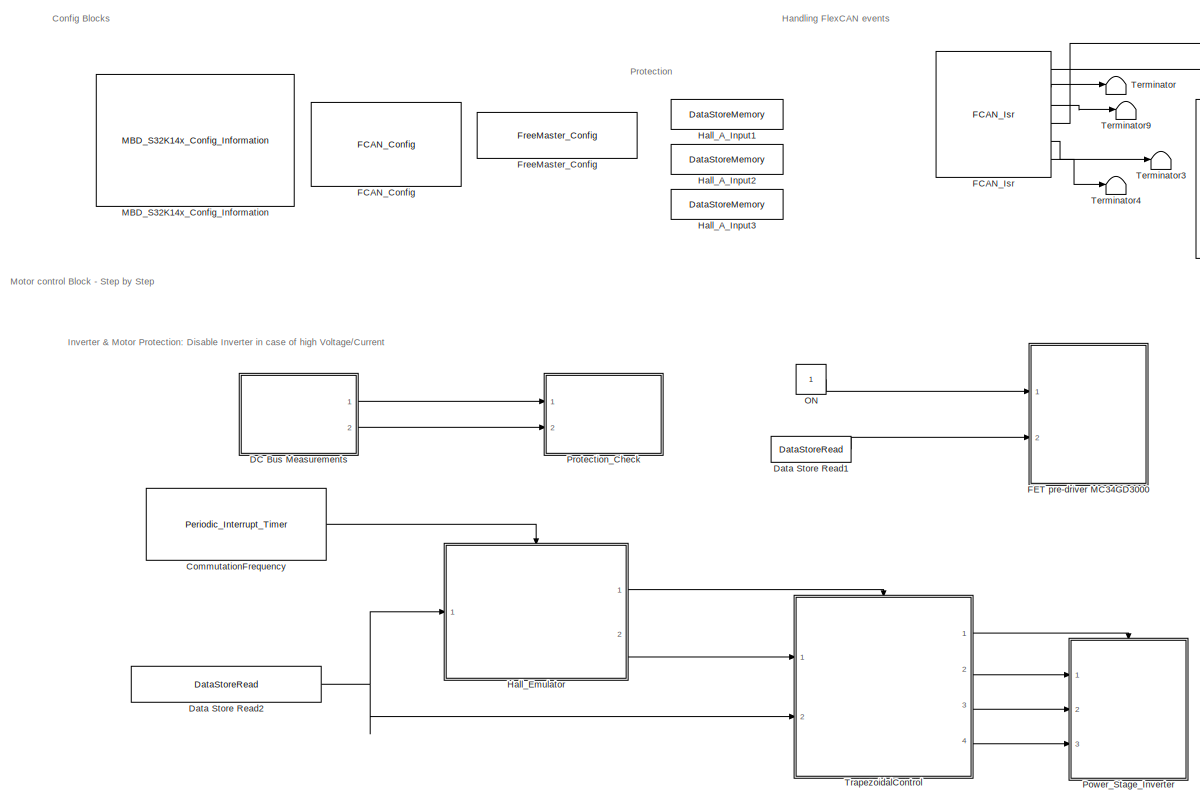
[diagram: root canvas - part 1/2, most of the canvas]
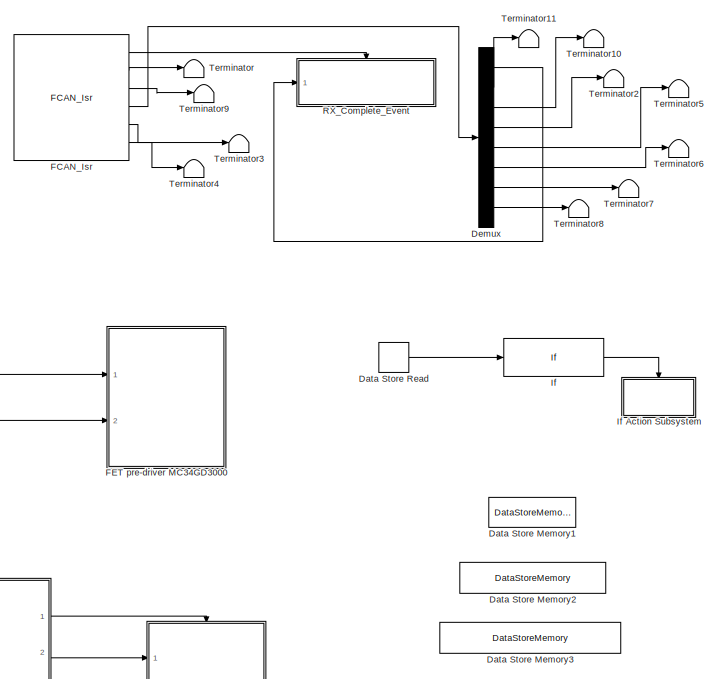
[diagram: root canvas - part 2/2, right side, full height]
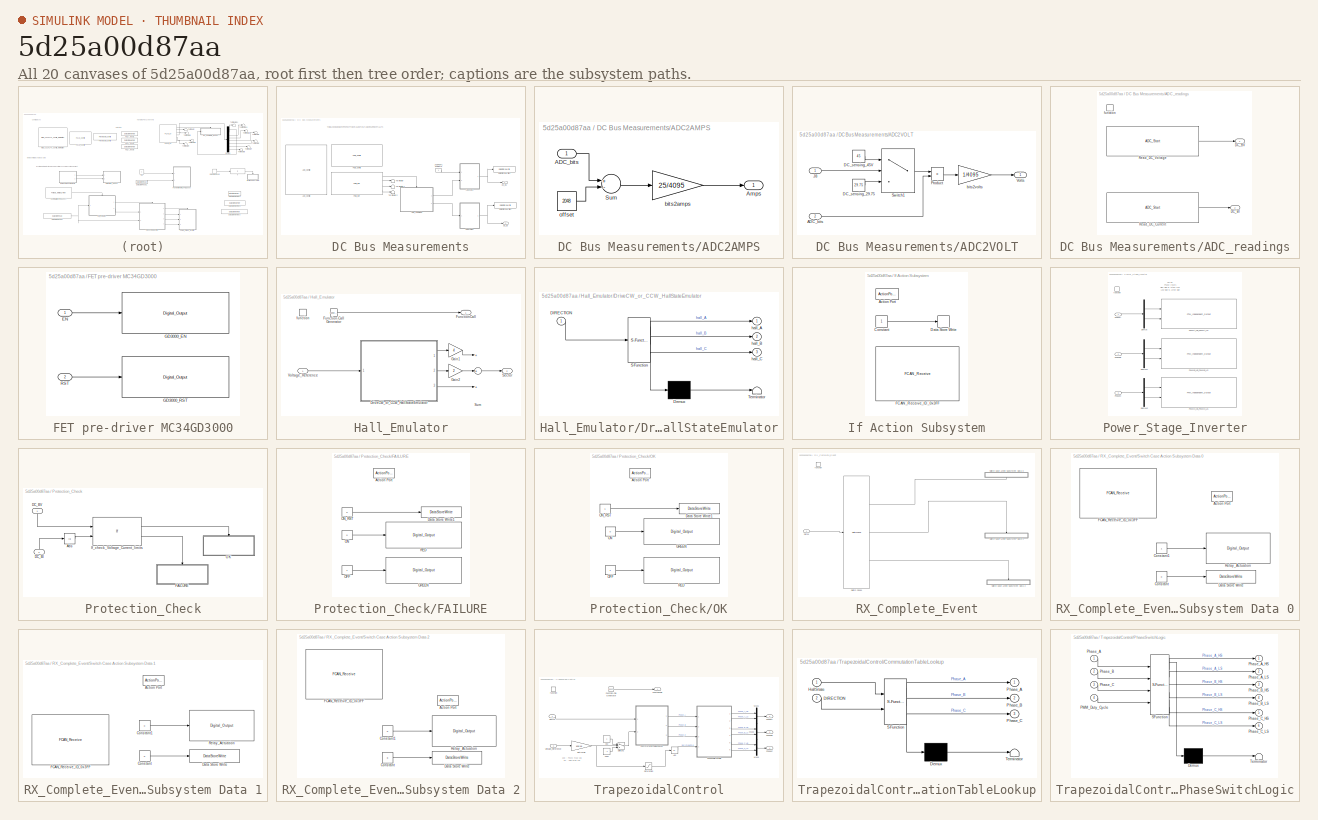
[diagram: thumbnail index - all 20 canvases of the model, root first then tree order]
MODEL slx_5d25a00d87aa
KIND model
CONFIG AbsTol = auto
CONFIG EnableMultiTasking = off
CONFIG FixedStep = 0.1
CONFIG InitFcn = mbd_s32k14_consistency_checks(bdroot(gcs));
CONFIG MaxStep = auto
CONFIG MinStep = auto
CONFIG RelTol = 1e-3
CONFIG SampleTimeConstraint = Unconstrained
CONFIG Solver = FixedStepDiscrete
CONFIG SolverName = FixedStepDiscrete
CONFIG StartTime = 0.0
CONFIG StopTime = 10.0
BLOCK [Reference] CommutationFrequency  REF=mbd_s32k14_ec_toolbox/S32K14x/Utility Blocks/Periodic_Interrupt_Timer
  Ports = [0, 1]
  Priority = 1
  SourceBlock = mbd_s32k14_ec_toolbox/S32K14x/Utility Blocks/Periodic_Interrupt_Timer
  SourceType = timer_s32k14_lpit
BLOCK [SubSystem] DC Bus Measurements
  Ports = [0, 2]
  Priority = 6
  RequestExecContextInheritance = off
BLOCK [SubSystem] DC Bus Measurements/ADC2AMPS
  Ports = [1, 1]
  RequestExecContextInheritance = off
BLOCK [Inport] DC Bus Measurements/ADC2AMPS/ADC_bits
  IconDisplay = Port number
BLOCK [Outport] DC Bus Measurements/ADC2AMPS/Amps
  IconDisplay = Port number
BLOCK [Sum] DC Bus Measurements/ADC2AMPS/Sum
  InputSameDT = off
  Inputs = +-
  OutDataTypeStr = single
  Ports = [2, 1]
  SaturateOnIntegerOverflow = off
BLOCK [Gain] DC Bus Measurements/ADC2AMPS/bits2amps
  Gain = 25/4095
  OutDataTypeStr = single
  ParamDataTypeStr = Inherit: Inherit via internal rule
  SaturateOnIntegerOverflow = off
BLOCK [Constant] DC Bus Measurements/ADC2AMPS/offset
  OutDataTypeStr = uint32
  Value = 2048
BLOCK [SubSystem] DC Bus Measurements/ADC2VOLT
  Ports = [2, 1]
  RequestExecContextInheritance = off
BLOCK [Inport] DC Bus Measurements/ADC2VOLT/ADC_bits
  IconDisplay = Port number
  Port = 2
BLOCK [Constant] DC Bus Measurements/ADC2VOLT/DC_sensing_29.75
  OutDataTypeStr = single
  Value = 29.75
BLOCK [Constant] DC Bus Measurements/ADC2VOLT/DC_sensing_45V
  OutDataTypeStr = single
  Value = 45
BLOCK [Inport] DC Bus Measurements/ADC2VOLT/J8
  IconDisplay = Port number
BLOCK [Product] DC Bus Measurements/ADC2VOLT/Product
  InputSameDT = off
  OutDataTypeStr = single
  Ports = [2, 1]
  RndMeth = Floor
  SaturateOnIntegerOverflow = off
BLOCK [Switch] DC Bus Measurements/ADC2VOLT/Switch1
  Criteria = u2 > Threshold
  InputSameDT = off
  SaturateOnIntegerOverflow = off
BLOCK [Outport] DC Bus Measurements/ADC2VOLT/Volts
  IconDisplay = Port number
BLOCK [Gain] DC Bus Measurements/ADC2VOLT/bits2volts
  Gain = 1/4095
  OutDataTypeStr = single
  ParamDataTypeStr = Inherit: Inherit via internal rule
  SaturateOnIntegerOverflow = off
BLOCK [Reference] DC Bus Measurements/ADC_Config  REF=mbd_s32k14_ec_toolbox/S32K14x/Motor Control Blocks/ADC Blocks/ADC_Config
  Ports = []
  Priority = 1
  SourceBlock = mbd_s32k14_ec_toolbox/S32K14x/Motor Control Blocks/ADC Blocks/ADC_Config
  SourceType = adc_s32k14_config_block
BLOCK [SubSystem] DC Bus Measurements/ADC_readings
  Ports = [0, 2, 0, 1]
  RTWSystemCode = Nonreusable function
  RequestExecContextInheritance = off
  TreatAsAtomicUnit = on
BLOCK [Outport] DC Bus Measurements/ADC_readings/DC_BI
  IconDisplay = Port number
  Port = 2
BLOCK [Outport] DC Bus Measurements/ADC_readings/DC_BV
  IconDisplay = Port number
BLOCK [Reference] DC Bus Measurements/ADC_readings/Read_DC_Current  REF=mbd_s32k14_ec_toolbox/S32K14x/Motor Control Blocks/ADC Blocks/ADC_Start
  Ports = [0, 1]
  SourceBlock = mbd_s32k14_ec_toolbox/S32K14x/Motor Control Blocks/ADC Blocks/ADC_Start
  SourceType = adc_s32k14_start_block
BLOCK [Reference] DC Bus Measurements/ADC_readings/Read_DC_Voltage  REF=mbd_s32k14_ec_toolbox/S32K14x/Motor Control Blocks/ADC Blocks/ADC_Start
  Ports = [0, 1]
  SourceBlock = mbd_s32k14_ec_toolbox/S32K14x/Motor Control Blocks/ADC Blocks/ADC_Start
  SourceType = adc_s32k14_start_block
BLOCK [TriggerPort] DC Bus Measurements/ADC_readings/function
  Ports = []
  StatesWhenEnabling = held
  TriggerType = function-call
  VariantControl = (inherit)
BLOCK [Outport] DC Bus Measurements/DC_BI
  IconDisplay = Port number
  Port = 2
BLOCK [Outport] DC Bus Measurements/DC_BV
  IconDisplay = Port number
BLOCK [DataStoreWrite] DC Bus Measurements/Data Store Write1
  DataStoreName = DC_BusVoltage
  Ports = [1]
BLOCK [DataStoreWrite] DC Bus Measurements/Data Store Write2
  DataStoreName = DC_BusCurrent
  Ports = [1]
BLOCK [Constant] DC Bus Measurements/J8 OPEN = 1 SHORT = 0
  OutDataTypeStr = boolean
BLOCK [Reference] DC Bus Measurements/PDB_Config  REF=mbd_s32k14_ec_toolbox/S32K14x/Motor Control Blocks/PDB Blocks/PDB_Config
  Ports = []
  Priority = 1
  SourceBlock = mbd_s32k14_ec_toolbox/S32K14x/Motor Control Blocks/PDB Blocks/PDB_Config
  SourceType = pdb_s32k14_config_block
BLOCK [Reference] DC Bus Measurements/PDB_ISR  REF=mbd_s32k14_ec_toolbox/S32K14x/Motor Control Blocks/PDB Blocks/PDB_ISR
  Ports = [0, 4]
  Priority = 2
  SourceBlock = mbd_s32k14_ec_toolbox/S32K14x/Motor Control Blocks/PDB Blocks/PDB_ISR
  SourceType = pdb_s32k14_isr_block
BLOCK [Terminator] DC Bus Measurements/Terminator
BLOCK [Terminator] DC Bus Measurements/Terminator1
BLOCK [Terminator] DC Bus Measurements/Terminator2
BLOCK [DataStoreMemory] Data Store Memory1
  DataStoreName = Once
  OutDataTypeStr = uint32
  ReadBeforeWriteMsg = warning
  ShowAdditionalParam = off
  WriteAfterReadMsg = warning
  WriteAfterWriteMsg = warning
BLOCK [DataStoreMemory] Data Store Memory2
  DataStoreName = HallStateChangeDelta
  OutDataTypeStr = uint16
  RTWStateStorageClass = ExportedGlobal
  ReadBeforeWriteMsg = warning
  ShowAdditionalParam = off
  SignalType = real
  WriteAfterReadMsg = warning
  WriteAfterWriteMsg = warning
BLOCK [DataStoreMemory] Data Store Memory3
  DataStoreName = VotageReqFreemaster
  OutDataTypeStr = int16
  RTWStateStorageClass = ExportedGlobal
  ReadBeforeWriteMsg = warning
  ShowAdditionalParam = off
  SignalType = real
  WriteAfterReadMsg = warning
  WriteAfterWriteMsg = warning
BLOCK [DataStoreRead] Data Store Read
  DataStoreName = Once
  Ports = [0, 1]
BLOCK [DataStoreRead] Data Store Read1
  DataStoreName = Activate_Inverter
  Ports = [0, 1]
BLOCK [DataStoreRead] Data Store Read2
  DataStoreName = VotageReqFreemaster
  Ports = [0, 1]
BLOCK [Demux] Demux
  DisplayOption = bar
  Outputs = 8
  Ports = [1, 8]
BLOCK [Reference] FCAN_Config  REF=mbd_s32k14_ec_toolbox/S32K14x/Communication Blocks/Flex CAN Blocks/FCAN_Config
  Ports = []
  Priority = 1
  SourceBlock = mbd_s32k14_ec_toolbox/S32K14x/Communication Blocks/Flex CAN Blocks/FCAN_Config
  SourceType = fcan_s32k14_config
BLOCK [Reference] FCAN_Isr  REF=mbd_s32k14_ec_toolbox/S32K14x/Communication Blocks/Flex CAN Blocks/FCAN_Isr
  Ports = [0, 6]
  SourceBlock = mbd_s32k14_ec_toolbox/S32K14x/Communication Blocks/Flex CAN Blocks/FCAN_Isr
  SourceType = fcan_s32k14_isr
BLOCK [SubSystem] FET pre-driver MC34GD3000
  Ports = [2]
  RequestExecContextInheritance = off
BLOCK [Inport] FET pre-driver MC34GD3000/EN
  IconDisplay = Port number
BLOCK [Reference] FET pre-driver MC34GD3000/GD3000_EN  REF=mbd_s32k14_ec_toolbox/S32K14x/Peripheral Interface Blocks/Digital_Output
  Ports = [1]
  SourceBlock = mbd_s32k14_ec_toolbox/S32K14x/Peripheral Interface Blocks/Digital_Output
  SourceType = gpio_s32k14_output
BLOCK [Reference] FET pre-driver MC34GD3000/GD3000_RST  REF=mbd_s32k14_ec_toolbox/S32K14x/Peripheral Interface Blocks/Digital_Output
  Ports = [1]
  SourceBlock = mbd_s32k14_ec_toolbox/S32K14x/Peripheral Interface Blocks/Digital_Output
  SourceType = gpio_s32k14_output
BLOCK [Inport] FET pre-driver MC34GD3000/RST
  IconDisplay = Port number
  Port = 2
BLOCK [Reference] FreeMaster_Config  REF=mbd_s32k14_ec_toolbox/S32K14x/Utility Blocks/FreeMaster_Config
  Ports = []
  SourceBlock = mbd_s32k14_ec_toolbox/S32K14x/Utility Blocks/FreeMaster_Config
  SourceType = fm_s32k14_config
BLOCK [DataStoreMemory] Hall_A_Input1
  DataStoreName = DC_BusVoltage
  OutDataTypeStr = single
  ReadBeforeWriteMsg = warning
  ShowAdditionalParam = off
  WriteAfterReadMsg = warning
  WriteAfterWriteMsg = warning
BLOCK [DataStoreMemory] Hall_A_Input2
  DataStoreName = DC_BusCurrent
  OutDataTypeStr = single
  ReadBeforeWriteMsg = warning
  ShowAdditionalParam = off
  WriteAfterReadMsg = warning
  WriteAfterWriteMsg = warning
BLOCK [DataStoreMemory] Hall_A_Input3
  DataStoreName = Activate_Inverter
  OutDataTypeStr = boolean
  ReadBeforeWriteMsg = warning
  ShowAdditionalParam = off
  WriteAfterReadMsg = warning
  WriteAfterWriteMsg = warning
BLOCK [SubSystem] Hall_Emulator
  Ports = [1, 2, 0, 1]
  PropExecContextOutsideSubsystem = on
  RTWSystemCode = Nonreusable function
  RequestExecContextInheritance = off
BLOCK [SubSystem] Hall_Emulator/DriveCW_or_CCW_HallStateEmulator
  ErrorFcn = Stateflow.Translate.translate
  PermitHierarchicalResolution = ExplicitOnly
  Ports = [1, 3]
  RequestExecContextInheritance = off
  SFBlockType = Chart
  TreatAsAtomicUnit = on
BLOCK [Demux] Hall_Emulator/DriveCW_or_CCW_HallStateEmulator/ Demux 
  Outputs = 1
  Ports = [1, 1]
BLOCK [S-Function] Hall_Emulator/DriveCW_or_CCW_HallStateEmulator/ SFunction 
  EnableBusSupport = on
  FunctionName = sf_sfun
  PortCounts = [1 4]
  Ports = [1, 4]
  SFcnIsStateOwnerBlock = off
  SFunctionDeploymentMode = off
  Tag = Stateflow S-Function StepbyStepMotorControl_Slave_SM 5
BLOCK [Terminator] Hall_Emulator/DriveCW_or_CCW_HallStateEmulator/ Terminator 
BLOCK [Inport] Hall_Emulator/DriveCW_or_CCW_HallStateEmulator/DIRECTION
  IconDisplay = Port number
BLOCK [Outport] Hall_Emulator/DriveCW_or_CCW_HallStateEmulator/hall_A
  IconDisplay = Port number
BLOCK [Outport] Hall_Emulator/DriveCW_or_CCW_HallStateEmulator/hall_B
  IconDisplay = Port number
  Port = 2
BLOCK [Outport] Hall_Emulator/DriveCW_or_CCW_HallStateEmulator/hall_C
  IconDisplay = Port number
  Port = 3
BLOCK [Reference] Hall_Emulator/Function-Call Generator  REF=simulink/Ports &
Subsystems/Function-Call
Generator
  Ports = [0, 1]
  SourceBlock = simulink/Ports &\nSubsystems/Function-Call\nGenerator
  SourceProductBaseCode = SL
  SourceProductName = Simulink
  SourceType = Function-Call Generator
BLOCK [Outport] Hall_Emulator/FunctionCall
  IconDisplay = Port number
BLOCK [Gain] Hall_Emulator/Gain1
  Gain = 4
  OutDataTypeStr = uint8
  SaturateOnIntegerOverflow = off
BLOCK [Gain] Hall_Emulator/Gain2
  Gain = 2
  OutDataTypeStr = uint8
  SaturateOnIntegerOverflow = off
BLOCK [Outport] Hall_Emulator/Sector
  IconDisplay = Port number
  OutDataTypeStr = uint8
  Port = 2
BLOCK [Sum] Hall_Emulator/Sum
  AccumDataTypeStr = uint8
  InputSameDT = off
  Inputs = +++
  OutDataTypeStr = uint8
  Ports = [3, 1]
  SaturateOnIntegerOverflow = off
BLOCK [Inport] Hall_Emulator/Voltage_Reference
  IconDisplay = Port number
BLOCK [TriggerPort] Hall_Emulator/function
  Ports = []
  StatesWhenEnabling = held
  TriggerType = function-call
  VariantControl = (inherit)
BLOCK [If] If
  IfExpression = u1 == 0
  Ports = [1, 1]
  ShowElse = off
BLOCK [SubSystem] If Action Subsystem
  Ports = [0, 0, 0, 0, 0, 0, 0, 1]
  RequestExecContextInheritance = off
  TreatAsAtomicUnit = on
BLOCK [ActionPort] If Action Subsystem/Action Port
  ActionType = then
BLOCK [Constant] If Action Subsystem/Constant
  OutDataTypeStr = uint32
BLOCK [DataStoreWrite] If Action Subsystem/Data Store Write
  DataStoreName = Once
  Ports = [1]
BLOCK [Reference] If Action Subsystem/FCAN_Receive_ID_0x3FF  REF=mbd_s32k14_ec_toolbox/S32K14x/Communication Blocks/Flex CAN Blocks/FCAN_Receive
  Ports = []
  SourceBlock = mbd_s32k14_ec_toolbox/S32K14x/Communication Blocks/Flex CAN Blocks/FCAN_Receive
  SourceType = fcan_s32k14_receive
BLOCK [Reference] MBD_S32K14x_Config_Information  REF=mbd_s32k14_ec_toolbox/S32K14x/MBD_S32K14x_Config_Information
  Ports = []
  SourceBlock = mbd_s32k14_ec_toolbox/S32K14x/MBD_S32K14x_Config_Information
  SourceType = MBDTBX_EC_S32K14
BLOCK [Constant] ON
  OutDataTypeStr = boolean
BLOCK [SubSystem] Power_Stage_Inverter
  Ports = [3, 0, 0, 1]
  RTWSystemCode = Nonreusable function
  RequestExecContextInheritance = off
  TreatAsAtomicUnit = on
BLOCK [Demux] Power_Stage_Inverter/Demux
  DisplayOption = bar
  Outputs = 2
  Ports = [1, 2]
BLOCK [Demux] Power_Stage_Inverter/Demux1
  DisplayOption = bar
  Outputs = 2
  Ports = [1, 2]
BLOCK [Demux] Power_Stage_Inverter/Demux2
  DisplayOption = bar
  Outputs = 2
  Ports = [1, 2]
BLOCK [Reference] Power_Stage_Inverter/PWMA_HS_PWMA_LS  REF=mbd_s32k14_ec_toolbox/S32K14x/Motor Control Blocks/FlexTimer Blocks/FTM_Independent_Output
  Ports = [2]
  SourceBlock = mbd_s32k14_ec_toolbox/S32K14x/Motor Control Blocks/FlexTimer Blocks/FTM_Independent_Output
  SourceType = FTM_s32k14_indep_block
BLOCK [Reference] Power_Stage_Inverter/PWMB_HS_PWMB_LS  REF=mbd_s32k14_ec_toolbox/S32K14x/Motor Control Blocks/FlexTimer Blocks/FTM_Independent_Output
  Ports = [2]
  SourceBlock = mbd_s32k14_ec_toolbox/S32K14x/Motor Control Blocks/FlexTimer Blocks/FTM_Independent_Output
  SourceType = FTM_s32k14_indep_block
BLOCK [Reference] Power_Stage_Inverter/PWMC_HS_PWMC_LS  REF=mbd_s32k14_ec_toolbox/S32K14x/Motor Control Blocks/FlexTimer Blocks/FTM_Independent_Output
  Ports = [2]
  SourceBlock = mbd_s32k14_ec_toolbox/S32K14x/Motor Control Blocks/FlexTimer Blocks/FTM_Independent_Output
  SourceType = FTM_s32k14_indep_block
BLOCK [Inport] Power_Stage_Inverter/PhaseA
  IconDisplay = Port number
BLOCK [Inport] Power_Stage_Inverter/PhaseB
  IconDisplay = Port number
  Port = 2
BLOCK [Inport] Power_Stage_Inverter/PhaseC
  IconDisplay = Port number
  Port = 3
BLOCK [TriggerPort] Power_Stage_Inverter/function
  Ports = []
  StatesWhenEnabling = held
  TriggerType = function-call
  VariantControl = (inherit)
BLOCK [SubSystem] Protection_Check
  Ports = [2]
  RequestExecContextInheritance = off
BLOCK [Abs] Protection_Check/Abs
  SaturateOnIntegerOverflow = off
BLOCK [Inport] Protection_Check/DC_BI
  IconDisplay = Port number
  Port = 2
BLOCK [Inport] Protection_Check/DC_BV
  IconDisplay = Port number
BLOCK [SubSystem] Protection_Check/FAILURE
  Ports = [0, 0, 0, 0, 0, 0, 0, 1]
  RequestExecContextInheritance = off
  TreatAsAtomicUnit = on
BLOCK [ActionPort] Protection_Check/FAILURE/Action Port
  ActionType = else
BLOCK [DataStoreWrite] Protection_Check/FAILURE/Data Store Write1
  DataStoreName = Activate_Inverter
  Ports = [1]
BLOCK [Reference] Protection_Check/FAILURE/GREEN  REF=mbd_s32k14_ec_toolbox/S32K14x/Peripheral Interface Blocks/Digital_Output
  Ports = [1]
  SourceBlock = mbd_s32k14_ec_toolbox/S32K14x/Peripheral Interface Blocks/Digital_Output
  SourceType = gpio_s32k14_output
BLOCK [Constant] Protection_Check/FAILURE/OFF
  OutDataTypeStr = boolean
BLOCK [Constant] Protection_Check/FAILURE/ON
  OutDataTypeStr = boolean
  Value = 0
BLOCK [Constant] Protection_Check/FAILURE/ON_RST
  OutDataTypeStr = boolean
  Value = 0
BLOCK [Reference] Protection_Check/FAILURE/RED  REF=mbd_s32k14_ec_toolbox/S32K14x/Peripheral Interface Blocks/Digital_Output
  Ports = [1]
  SourceBlock = mbd_s32k14_ec_toolbox/S32K14x/Peripheral Interface Blocks/Digital_Output
  SourceType = gpio_s32k14_output
BLOCK [If] Protection_Check/If_check_Voltage_Current_limits
  IfExpression = ( (u1 > 8) & (u1 <18) ) & (u2 < 12)
  NumInputs = 2
  Ports = [2, 2]
BLOCK [SubSystem] Protection_Check/OK
  Ports = [0, 0, 0, 0, 0, 0, 0, 1]
  RequestExecContextInheritance = off
  TreatAsAtomicUnit = on
BLOCK [ActionPort] Protection_Check/OK/Action Port
  ActionType = then
BLOCK [DataStoreWrite] Protection_Check/OK/Data Store Write1
  DataStoreName = Activate_Inverter
  Ports = [1]
BLOCK [Reference] Protection_Check/OK/GREEN  REF=mbd_s32k14_ec_toolbox/S32K14x/Peripheral Interface Blocks/Digital_Output
  Ports = [1]
  SourceBlock = mbd_s32k14_ec_toolbox/S32K14x/Peripheral Interface Blocks/Digital_Output
  SourceType = gpio_s32k14_output
BLOCK [Constant] Protection_Check/OK/OFF
  OutDataTypeStr = boolean
BLOCK [Constant] Protection_Check/OK/ON
  OutDataTypeStr = boolean
  Value = 0
BLOCK [Constant] Protection_Check/OK/ON_RST
  OutDataTypeStr = boolean
BLOCK [Reference] Protection_Check/OK/RED  REF=mbd_s32k14_ec_toolbox/S32K14x/Peripheral Interface Blocks/Digital_Output
  Ports = [1]
  SourceBlock = mbd_s32k14_ec_toolbox/S32K14x/Peripheral Interface Blocks/Digital_Output
  SourceType = gpio_s32k14_output
BLOCK [SubSystem] RX_Complete_Event
  Ports = [1, 0, 0, 1]
  RTWSystemCode = Nonreusable function
  RequestExecContextInheritance = off
  TreatAsAtomicUnit = on
BLOCK [Inport] RX_Complete_Event/Data1
  IconDisplay = Port number
BLOCK [SubSystem] RX_Complete_Event/Switch Case Action Subsystem Data 0
  Ports = [0, 0, 0, 0, 0, 0, 0, 1]
  RequestExecContextInheritance = off
  TreatAsAtomicUnit = on
BLOCK [ActionPort] RX_Complete_Event/Switch Case Action Subsystem Data 0/Action Port
  ActionType = case
BLOCK [Constant] RX_Complete_Event/Switch Case Action Subsystem Data 0/Constant
  OutDataTypeStr = int16
  Value = 0
BLOCK [Constant] RX_Complete_Event/Switch Case Action Subsystem Data 0/Constant1
  OutDataTypeStr = boolean
BLOCK [DataStoreWrite] RX_Complete_Event/Switch Case Action Subsystem Data 0/Data Store Write
  DataStoreName = VotageReqFreemaster
  Ports = [1]
BLOCK [Reference] RX_Complete_Event/Switch Case Action Subsystem Data 0/FCAN_Receive_ID_0x3FF  REF=mbd_s32k14_ec_toolbox/S32K14x/Communication Blocks/Flex CAN Blocks/FCAN_Receive
  Ports = []
  SourceBlock = mbd_s32k14_ec_toolbox/S32K14x/Communication Blocks/Flex CAN Blocks/FCAN_Receive
  SourceType = fcan_s32k14_receive
BLOCK [Reference] RX_Complete_Event/Switch Case Action Subsystem Data 0/Relay_Actuation  REF=mbd_s32k14_ec_toolbox/S32K14x/Peripheral Interface Blocks/Digital_Output
  Ports = [1]
  SourceBlock = mbd_s32k14_ec_toolbox/S32K14x/Peripheral Interface Blocks/Digital_Output
  SourceType = gpio_s32k14_output
BLOCK [SubSystem] RX_Complete_Event/Switch Case Action Subsystem Data 1
  Ports = [0, 0, 0, 0, 0, 0, 0, 1]
  RequestExecContextInheritance = off
  TreatAsAtomicUnit = on
BLOCK [ActionPort] RX_Complete_Event/Switch Case Action Subsystem Data 1/Action Port
  ActionType = case
BLOCK [Constant] RX_Complete_Event/Switch Case Action Subsystem Data 1/Constant
  OutDataTypeStr = int16
  Value = 0
BLOCK [Constant] RX_Complete_Event/Switch Case Action Subsystem Data 1/Constant1
  OutDataTypeStr = boolean
  Value = 0
BLOCK [DataStoreWrite] RX_Complete_Event/Switch Case Action Subsystem Data 1/Data Store Write
  DataStoreName = VotageReqFreemaster
  Ports = [1]
BLOCK [Reference] RX_Complete_Event/Switch Case Action Subsystem Data 1/FCAN_Receive_ID_0x3FF  REF=mbd_s32k14_ec_toolbox/S32K14x/Communication Blocks/Flex CAN Blocks/FCAN_Receive
  Ports = []
  SourceBlock = mbd_s32k14_ec_toolbox/S32K14x/Communication Blocks/Flex CAN Blocks/FCAN_Receive
  SourceType = fcan_s32k14_receive
BLOCK [Reference] RX_Complete_Event/Switch Case Action Subsystem Data 1/Relay_Actuation  REF=mbd_s32k14_ec_toolbox/S32K14x/Peripheral Interface Blocks/Digital_Output
  Ports = [1]
  SourceBlock = mbd_s32k14_ec_toolbox/S32K14x/Peripheral Interface Blocks/Digital_Output
  SourceType = gpio_s32k14_output
BLOCK [SubSystem] RX_Complete_Event/Switch Case Action Subsystem Data 2
  Ports = [0, 0, 0, 0, 0, 0, 0, 1]
  RequestExecContextInheritance = off
  TreatAsAtomicUnit = on
BLOCK [ActionPort] RX_Complete_Event/Switch Case Action Subsystem Data 2/Action Port
  ActionType = case
BLOCK [Constant] RX_Complete_Event/Switch Case Action Subsystem Data 2/Constant
  OutDataTypeStr = int16
  Value = 8
BLOCK [Constant] RX_Complete_Event/Switch Case Action Subsystem Data 2/Constant1
  OutDataTypeStr = boolean
  Value = 0
BLOCK [DataStoreWrite] RX_Complete_Event/Switch Case Action Subsystem Data 2/Data Store Write
  DataStoreName = VotageReqFreemaster
  Ports = [1]
BLOCK [Reference] RX_Complete_Event/Switch Case Action Subsystem Data 2/FCAN_Receive_ID_0x3FF  REF=mbd_s32k14_ec_toolbox/S32K14x/Communication Blocks/Flex CAN Blocks/FCAN_Receive
  Ports = []
  SourceBlock = mbd_s32k14_ec_toolbox/S32K14x/Communication Blocks/Flex CAN Blocks/FCAN_Receive
  SourceType = fcan_s32k14_receive
BLOCK [Reference] RX_Complete_Event/Switch Case Action Subsystem Data 2/Relay_Actuation  REF=mbd_s32k14_ec_toolbox/S32K14x/Peripheral Interface Blocks/Digital_Output
  Ports = [1]
  SourceBlock = mbd_s32k14_ec_toolbox/S32K14x/Peripheral Interface Blocks/Digital_Output
  SourceType = gpio_s32k14_output
BLOCK [SwitchCase] RX_Complete_Event/Switch Case1
  CaseConditions = {hex2dec('030'),hex2dec('031'), hex2dec('032')}
  Ports = [1, 3]
  ShowDefaultCase = off
BLOCK [TriggerPort] RX_Complete_Event/function
  Ports = []
  StatesWhenEnabling = held
  TriggerType = function-call
  VariantControl = (inherit)
BLOCK [Terminator] Terminator
BLOCK [Terminator] Terminator10
BLOCK [Terminator] Terminator11
BLOCK [Terminator] Terminator2
BLOCK [Terminator] Terminator3
BLOCK [Terminator] Terminator4
BLOCK [Terminator] Terminator5
BLOCK [Terminator] Terminator6
BLOCK [Terminator] Terminator7
BLOCK [Terminator] Terminator8
BLOCK [Terminator] Terminator9
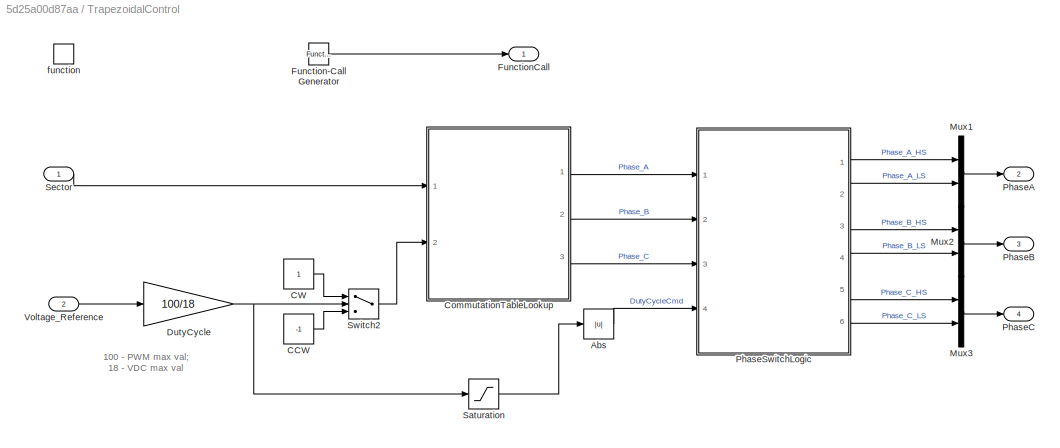
BLOCK [SubSystem] TrapezoidalControl
  Ports = [2, 4, 0, 1]
  RTWSystemCode = Nonreusable function
  RequestExecContextInheritance = off
BLOCK [Abs] TrapezoidalControl/Abs
  OutDataTypeStr = Inherit: Inherit via internal rule
  OutMax = 100
  OutMin = 0
  SaturateOnIntegerOverflow = off
BLOCK [Constant] TrapezoidalControl/CCW
  OutDataTypeStr = single
  Value = -1
BLOCK [Constant] TrapezoidalControl/CW
  OutDataTypeStr = single
BLOCK [SubSystem] TrapezoidalControl/CommutationTableLookup
  ErrorFcn = Stateflow.Translate.translate
  PermitHierarchicalResolution = ExplicitOnly
  Ports = [2, 3]
  RequestExecContextInheritance = off
  SFBlockType = Chart
  TreatAsAtomicUnit = on
BLOCK [Demux] TrapezoidalControl/CommutationTableLookup/ Demux 
  Outputs = 1
  Ports = [1, 1]
BLOCK [S-Function] TrapezoidalControl/CommutationTableLookup/ SFunction 
  EnableBusSupport = on
  FunctionName = sf_sfun
  PortCounts = [2 4]
  Ports = [2, 4]
  SFcnIsStateOwnerBlock = off
  SFunctionDeploymentMode = off
  Tag = Stateflow S-Function StepbyStepMotorControl_Slave_SM 1
BLOCK [Terminator] TrapezoidalControl/CommutationTableLookup/ Terminator 
BLOCK [Inport] TrapezoidalControl/CommutationTableLookup/DIRECTION
  IconDisplay = Port number
  Port = 2
BLOCK [Inport] TrapezoidalControl/CommutationTableLookup/HallState
  IconDisplay = Port number
BLOCK [Outport] TrapezoidalControl/CommutationTableLookup/Phase_A
  IconDisplay = Port number
BLOCK [Outport] TrapezoidalControl/CommutationTableLookup/Phase_B
  IconDisplay = Port number
  Port = 2
BLOCK [Outport] TrapezoidalControl/CommutationTableLookup/Phase_C
  IconDisplay = Port number
  Port = 3
BLOCK [Gain] TrapezoidalControl/DutyCycle
  Gain = 100/18
  OutDataTypeStr = single
  OutMax = 100
  OutMin = -100
  SaturateOnIntegerOverflow = off
BLOCK [Reference] TrapezoidalControl/Function-Call Generator  REF=simulink/Ports &
Subsystems/Function-Call
Generator
  Ports = [0, 1]
  SourceBlock = simulink/Ports &\nSubsystems/Function-Call\nGenerator
  SourceProductBaseCode = SL
  SourceProductName = Simulink
  SourceType = Function-Call Generator
BLOCK [Outport] TrapezoidalControl/FunctionCall
  IconDisplay = Port number
BLOCK [Mux] TrapezoidalControl/Mux1
  DisplayOption = bar
  Inputs = 2
  Ports = [2, 1]
BLOCK [Mux] TrapezoidalControl/Mux2
  DisplayOption = bar
  Inputs = 2
  Ports = [2, 1]
BLOCK [Mux] TrapezoidalControl/Mux3
  DisplayOption = bar
  Inputs = 2
  Ports = [2, 1]
BLOCK [Outport] TrapezoidalControl/PhaseA
  IconDisplay = Port number
  Port = 2
BLOCK [Outport] TrapezoidalControl/PhaseB
  IconDisplay = Port number
  Port = 3
BLOCK [Outport] TrapezoidalControl/PhaseC
  IconDisplay = Port number
  Port = 4
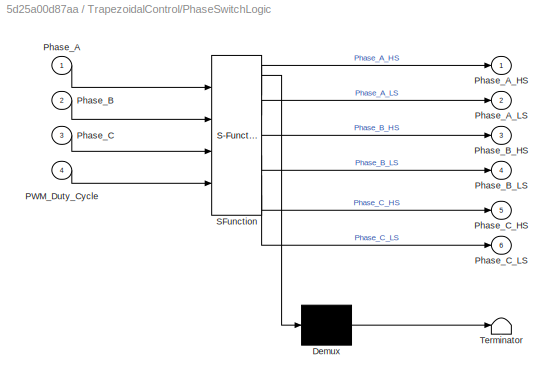
BLOCK [SubSystem] TrapezoidalControl/PhaseSwitchLogic
  ErrorFcn = Stateflow.Translate.translate
  PermitHierarchicalResolution = ExplicitOnly
  Ports = [4, 6]
  RequestExecContextInheritance = off
  SFBlockType = Chart
  TreatAsAtomicUnit = on
BLOCK [Demux] TrapezoidalControl/PhaseSwitchLogic/ Demux 
  Outputs = 1
  Ports = [1, 1]
BLOCK [S-Function] TrapezoidalControl/PhaseSwitchLogic/ SFunction 
  EnableBusSupport = on
  FunctionName = sf_sfun
  PortCounts = [4 7]
  Ports = [4, 7]
  SFcnIsStateOwnerBlock = off
  SFunctionDeploymentMode = off
  Tag = Stateflow S-Function StepbyStepMotorControl_Slave_SM 6
BLOCK [Terminator] TrapezoidalControl/PhaseSwitchLogic/ Terminator 
BLOCK [Inport] TrapezoidalControl/PhaseSwitchLogic/PWM_Duty_Cycle
  IconDisplay = Port number
  Port = 4
BLOCK [Inport] TrapezoidalControl/PhaseSwitchLogic/Phase_A
  IconDisplay = Port number
BLOCK [Outport] TrapezoidalControl/PhaseSwitchLogic/Phase_A_HS
  IconDisplay = Port number
BLOCK [Outport] TrapezoidalControl/PhaseSwitchLogic/Phase_A_LS
  IconDisplay = Port number
  Port = 2
BLOCK [Inport] TrapezoidalControl/PhaseSwitchLogic/Phase_B
  IconDisplay = Port number
  Port = 2
BLOCK [Outport] TrapezoidalControl/PhaseSwitchLogic/Phase_B_HS
  IconDisplay = Port number
  Port = 3
BLOCK [Outport] TrapezoidalControl/PhaseSwitchLogic/Phase_B_LS
  IconDisplay = Port number
  Port = 4
BLOCK [Inport] TrapezoidalControl/PhaseSwitchLogic/Phase_C
  IconDisplay = Port number
  Port = 3
BLOCK [Outport] TrapezoidalControl/PhaseSwitchLogic/Phase_C_HS
  IconDisplay = Port number
  Port = 5
BLOCK [Outport] TrapezoidalControl/PhaseSwitchLogic/Phase_C_LS
  IconDisplay = Port number
  Port = 6
BLOCK [Saturate] TrapezoidalControl/Saturation
  InputPortMap = u0
  LowerLimit = -100
  Ports = [1, 1]
  UpperLimit = 100
BLOCK [Inport] TrapezoidalControl/Sector
  IconDisplay = Port number
BLOCK [Switch] TrapezoidalControl/Switch2
  InputSameDT = off
  OutDataTypeStr = single
  SaturateOnIntegerOverflow = off
BLOCK [Inport] TrapezoidalControl/Voltage_Reference
  IconDisplay = Port number
  Port = 2
BLOCK [TriggerPort] TrapezoidalControl/function
  Ports = []
  StatesWhenEnabling = held
  TriggerType = function-call
  VariantControl = (inherit)
ANNOTATION (root): Protection
ANNOTATION (root): Config Blocks
ANNOTATION (root): Handling FlexCAN events
ANNOTATION (root): Inverter & Motor Protection: Disable Inverter in case of high Voltage/Current
ANNOTATION (root): Motor control Block - Step by Step
ANNOTATION DC Bus Measurements: THIS BLOCK IS DESIGN TO PROTECT THE KIT AGAINST VOLTAGE OR CURRENT FAULTS
ANNOTATION Power_Stage_Inverter: NOTE Phase Inputs High Side is Active Low Low Side is Active High
ANNOTATION TrapezoidalControl: 100 - PWM max val; 18 - VDC max val
LINE CommutationFrequency:1 -> Hall_Emulator:trigger
LINE DC Bus Measurements/ADC2AMPS/ADC_bits:1 -> DC Bus Measurements/ADC2AMPS/Sum:1
LINE DC Bus Measurements/ADC2AMPS/Sum:1 -> DC Bus Measurements/ADC2AMPS/bits2amps:1
LINE DC Bus Measurements/ADC2AMPS/bits2amps:1 -> DC Bus Measurements/ADC2AMPS/Amps:1
LINE DC Bus Measurements/ADC2AMPS/offset:1 -> DC Bus Measurements/ADC2AMPS/Sum:2
NET DC Bus Measurements/ADC2AMPS:1 -> DC Bus Measurements/DC_BI:1, DC Bus Measurements/Data Store Write2:1
LINE DC Bus Measurements/ADC2VOLT/ADC_bits:1 -> DC Bus Measurements/ADC2VOLT/Product:2
LINE DC Bus Measurements/ADC2VOLT/DC_sensing_29.75:1 -> DC Bus Measurements/ADC2VOLT/Switch1:3
LINE DC Bus Measurements/ADC2VOLT/DC_sensing_45V:1 -> DC Bus Measurements/ADC2VOLT/Switch1:1
LINE DC Bus Measurements/ADC2VOLT/J8:1 -> DC Bus Measurements/ADC2VOLT/Switch1:2
LINE DC Bus Measurements/ADC2VOLT/Product:1 -> DC Bus Measurements/ADC2VOLT/bits2volts:1
LINE DC Bus Measurements/ADC2VOLT/Switch1:1 -> DC Bus Measurements/ADC2VOLT/Product:1
LINE DC Bus Measurements/ADC2VOLT/bits2volts:1 -> DC Bus Measurements/ADC2VOLT/Volts:1
NET DC Bus Measurements/ADC2VOLT:1 -> DC Bus Measurements/DC_BV:1, DC Bus Measurements/Data Store Write1:1
LINE DC Bus Measurements/ADC_readings/Read_DC_Current:1 -> DC Bus Measurements/ADC_readings/DC_BI:1
LINE DC Bus Measurements/ADC_readings/Read_DC_Voltage:1 -> DC Bus Measurements/ADC_readings/DC_BV:1
LINE DC Bus Measurements/ADC_readings:1 -> DC Bus Measurements/ADC2VOLT:2
LINE DC Bus Measurements/ADC_readings:2 -> DC Bus Measurements/ADC2AMPS:1
LINE DC Bus Measurements/J8 OPEN = 1 SHORT = 0:1 -> DC Bus Measurements/ADC2VOLT:1
LINE DC Bus Measurements/PDB_ISR:1 -> DC Bus Measurements/ADC_readings:trigger
LINE DC Bus Measurements/PDB_ISR:2 -> DC Bus Measurements/Terminator:1
LINE DC Bus Measurements/PDB_ISR:3 -> DC Bus Measurements/Terminator1:1
LINE DC Bus Measurements/PDB_ISR:4 -> DC Bus Measurements/Terminator2:1
LINE DC Bus Measurements:1 -> Protection_Check:1
LINE DC Bus Measurements:2 -> Protection_Check:2
LINE Data Store Read1:1 -> FET pre-driver MC34GD3000:2
NET Data Store Read2:1 -> Hall_Emulator:1, TrapezoidalControl:2
LINE Data Store Read:1 -> If:1
LINE Demux:1 -> RX_Complete_Event:1
LINE Demux:2 -> Terminator11:1
LINE Demux:3 -> Terminator10:1
LINE Demux:4 -> Terminator2:1
LINE Demux:5 -> Terminator5:1
LINE Demux:6 -> Terminator6:1
LINE Demux:7 -> Terminator7:1
LINE Demux:8 -> Terminator8:1
LINE FCAN_Isr:1 -> RX_Complete_Event:trigger
LINE FCAN_Isr:2 -> Terminator:1
LINE FCAN_Isr:3 -> Terminator9:1
LINE FCAN_Isr:4 -> Demux:1
LINE FCAN_Isr:5 -> Terminator3:1
LINE FCAN_Isr:6 -> Terminator4:1
LINE FET pre-driver MC34GD3000/EN:1 -> FET pre-driver MC34GD3000/GD3000_EN:1
LINE FET pre-driver MC34GD3000/RST:1 -> FET pre-driver MC34GD3000/GD3000_RST:1
LINE Hall_Emulator/DriveCW_or_CCW_HallStateEmulator:1 -> Hall_Emulator/Gain1:1
LINE Hall_Emulator/DriveCW_or_CCW_HallStateEmulator:2 -> Hall_Emulator/Gain2:1
LINE Hall_Emulator/DriveCW_or_CCW_HallStateEmulator:3 -> Hall_Emulator/Sum:3
LINE Hall_Emulator/Function-Call Generator:1 -> Hall_Emulator/FunctionCall:1
LINE Hall_Emulator/Gain1:1 -> Hall_Emulator/Sum:1
LINE Hall_Emulator/Gain2:1 -> Hall_Emulator/Sum:2
LINE Hall_Emulator/Sum:1 -> Hall_Emulator/Sector:1
LINE Hall_Emulator/Voltage_Reference:1 -> Hall_Emulator/DriveCW_or_CCW_HallStateEmulator:1
LINE Hall_Emulator:1 -> TrapezoidalControl:trigger
LINE Hall_Emulator:2 -> TrapezoidalControl:1
LINE If Action Subsystem/Constant:1 -> If Action Subsystem/Data Store Write:1
LINE If:1 -> If Action Subsystem:ifaction
LINE ON:1 -> FET pre-driver MC34GD3000:1
LINE Power_Stage_Inverter/Demux1:1 -> Power_Stage_Inverter/PWMB_HS_PWMB_LS:1
LINE Power_Stage_Inverter/Demux1:2 -> Power_Stage_Inverter/PWMB_HS_PWMB_LS:2
LINE Power_Stage_Inverter/Demux2:1 -> Power_Stage_Inverter/PWMC_HS_PWMC_LS:1
LINE Power_Stage_Inverter/Demux2:2 -> Power_Stage_Inverter/PWMC_HS_PWMC_LS:2
LINE Power_Stage_Inverter/Demux:1 -> Power_Stage_Inverter/PWMA_HS_PWMA_LS:1
LINE Power_Stage_Inverter/Demux:2 -> Power_Stage_Inverter/PWMA_HS_PWMA_LS:2
LINE Power_Stage_Inverter/PhaseA:1 -> Power_Stage_Inverter/Demux:1
LINE Power_Stage_Inverter/PhaseB:1 -> Power_Stage_Inverter/Demux1:1
LINE Power_Stage_Inverter/PhaseC:1 -> Power_Stage_Inverter/Demux2:1
LINE Protection_Check/Abs:1 -> Protection_Check/If_check_Voltage_Current_limits:2
LINE Protection_Check/DC_BI:1 -> Protection_Check/Abs:1
LINE Protection_Check/DC_BV:1 -> Protection_Check/If_check_Voltage_Current_limits:1
LINE Protection_Check/FAILURE/OFF:1 -> Protection_Check/FAILURE/GREEN:1
LINE Protection_Check/FAILURE/ON:1 -> Protection_Check/FAILURE/RED:1
LINE Protection_Check/FAILURE/ON_RST:1 -> Protection_Check/FAILURE/Data Store Write1:1
LINE Protection_Check/If_check_Voltage_Current_limits:1 -> Protection_Check/OK:ifaction
LINE Protection_Check/If_check_Voltage_Current_limits:2 -> Protection_Check/FAILURE:ifaction
LINE Protection_Check/OK/OFF:1 -> Protection_Check/OK/RED:1
LINE Protection_Check/OK/ON:1 -> Protection_Check/OK/GREEN:1
LINE Protection_Check/OK/ON_RST:1 -> Protection_Check/OK/Data Store Write1:1
LINE RX_Complete_Event/Data1:1 -> RX_Complete_Event/Switch Case1:1
LINE RX_Complete_Event/Switch Case Action Subsystem Data 0/Constant1:1 -> RX_Complete_Event/Switch Case Action Subsystem Data 0/Relay_Actuation:1
LINE RX_Complete_Event/Switch Case Action Subsystem Data 0/Constant:1 -> RX_Complete_Event/Switch Case Action Subsystem Data 0/Data Store Write:1
LINE RX_Complete_Event/Switch Case Action Subsystem Data 1/Constant1:1 -> RX_Complete_Event/Switch Case Action Subsystem Data 1/Relay_Actuation:1
LINE RX_Complete_Event/Switch Case Action Subsystem Data 1/Constant:1 -> RX_Complete_Event/Switch Case Action Subsystem Data 1/Data Store Write:1
LINE RX_Complete_Event/Switch Case Action Subsystem Data 2/Constant1:1 -> RX_Complete_Event/Switch Case Action Subsystem Data 2/Relay_Actuation:1
LINE RX_Complete_Event/Switch Case Action Subsystem Data 2/Constant:1 -> RX_Complete_Event/Switch Case Action Subsystem Data 2/Data Store Write:1
LINE RX_Complete_Event/Switch Case1:1 -> RX_Complete_Event/Switch Case Action Subsystem Data 0:ifaction
LINE RX_Complete_Event/Switch Case1:2 -> RX_Complete_Event/Switch Case Action Subsystem Data 1:ifaction
LINE RX_Complete_Event/Switch Case1:3 -> RX_Complete_Event/Switch Case Action Subsystem Data 2:ifaction
LINE TrapezoidalControl/Abs:1 -> TrapezoidalControl/PhaseSwitchLogic:4
LINE TrapezoidalControl/CCW:1 -> TrapezoidalControl/Switch2:3
LINE TrapezoidalControl/CW:1 -> TrapezoidalControl/Switch2:1
LINE TrapezoidalControl/CommutationTableLookup:1 -> TrapezoidalControl/PhaseSwitchLogic:1
LINE TrapezoidalControl/CommutationTableLookup:2 -> TrapezoidalControl/PhaseSwitchLogic:2
LINE TrapezoidalControl/CommutationTableLookup:3 -> TrapezoidalControl/PhaseSwitchLogic:3
NET TrapezoidalControl/DutyCycle:1 -> TrapezoidalControl/Saturation:1, TrapezoidalControl/Switch2:2
LINE TrapezoidalControl/Function-Call Generator:1 -> TrapezoidalControl/FunctionCall:1
LINE TrapezoidalControl/Mux1:1 -> TrapezoidalControl/PhaseA:1
LINE TrapezoidalControl/Mux2:1 -> TrapezoidalControl/PhaseB:1
LINE TrapezoidalControl/Mux3:1 -> TrapezoidalControl/PhaseC:1
LINE TrapezoidalControl/PhaseSwitchLogic:1 -> TrapezoidalControl/Mux1:1
LINE TrapezoidalControl/PhaseSwitchLogic:2 -> TrapezoidalControl/Mux1:2
LINE TrapezoidalControl/PhaseSwitchLogic:3 -> TrapezoidalControl/Mux2:1
LINE TrapezoidalControl/PhaseSwitchLogic:4 -> TrapezoidalControl/Mux2:2
LINE TrapezoidalControl/PhaseSwitchLogic:5 -> TrapezoidalControl/Mux3:1
LINE TrapezoidalControl/PhaseSwitchLogic:6 -> TrapezoidalControl/Mux3:2
LINE TrapezoidalControl/Saturation:1 -> TrapezoidalControl/Abs:1
LINE TrapezoidalControl/Sector:1 -> TrapezoidalControl/CommutationTableLookup:1
LINE TrapezoidalControl/Switch2:1 -> TrapezoidalControl/CommutationTableLookup:2
LINE TrapezoidalControl/Voltage_Reference:1 -> TrapezoidalControl/DutyCycle:1
LINE TrapezoidalControl:1 -> Power_Stage_Inverter:trigger
LINE TrapezoidalControl:2 -> Power_Stage_Inverter:1
LINE TrapezoidalControl:3 -> Power_Stage_Inverter:2
LINE TrapezoidalControl:4 -> Power_Stage_Inverter:3
note: NET lines group one-source signal fan-out (src -> all destinations, sorted); 1:1 wires keep LINE
CHART TrapezoidalControl/CommutationTableLookup states=0 transitions=5
CHART Hall_Emulator/DriveCW_or_CCW_HallStateEmulator states=11 transitions=13
  STATE_LABEL 'STEP1\nentry:\nhall_A = uint8(1);\nhall_B = uint8(0);\nhall_C = uint8(0);\n'
  STATE_LABEL 'STEP2_CCW\nentry:\nhall_A = uint8(1);\nhall_B = uint8(0);\nhall_C = uint8(1);\n'
  STATE_LABEL 'STEP2_CW\nentry:\nhall_A = uint8(1);\nhall_B = uint8(1);\nhall_C = uint8(0);\n'
  STATE_LABEL 'STEP3_CCW\nentry:\nhall_A = uint8(0);\nhall_B = uint8(0);\nhall_C = uint8(1);\n'
  STATE_LABEL 'STEP3\nentry:\nhall_A = uint8(0);\nhall_B = uint8(1);\nhall_C = uint8(0);\n'
  STATE_LABEL 'STEP4_CCW\nentry:\nhall_A = uint8(0);\nhall_B = uint8(1);\nhall_C = uint8(1);\n'
  STATE_LABEL 'STEP4\nentry:\nhall_A = uint8(0);\nhall_B = uint8(1);\nhall_C = uint8(1);\n'
  STATE_LABEL 'STEP5_CCW\nentry:\nhall_A = uint8(0);\nhall_B = uint8(1);\nhall_C = uint8(0);\n'
  STATE_LABEL 'STEP5\nentry:\nhall_A = uint8(0);\nhall_B = uint8(0);\nhall_C = uint8(1);\n'
  STATE_LABEL 'STEP6_CCW\nentry:\nhall_A = uint8(1);\nhall_B = uint8(1);\nhall_C = uint8(0);\n'
  STATE_LABEL 'STEP6\nentry:\nhall_A = uint8(1);\nhall_B = uint8(0);\nhall_C = uint8(1);\n'
CHART TrapezoidalControl/PhaseSwitchLogic states=1 transitions=31
  STATE_LABEL 'Phase States:\n0 = NC\n1 = -Vdcb\n2 = +Vdcb'
